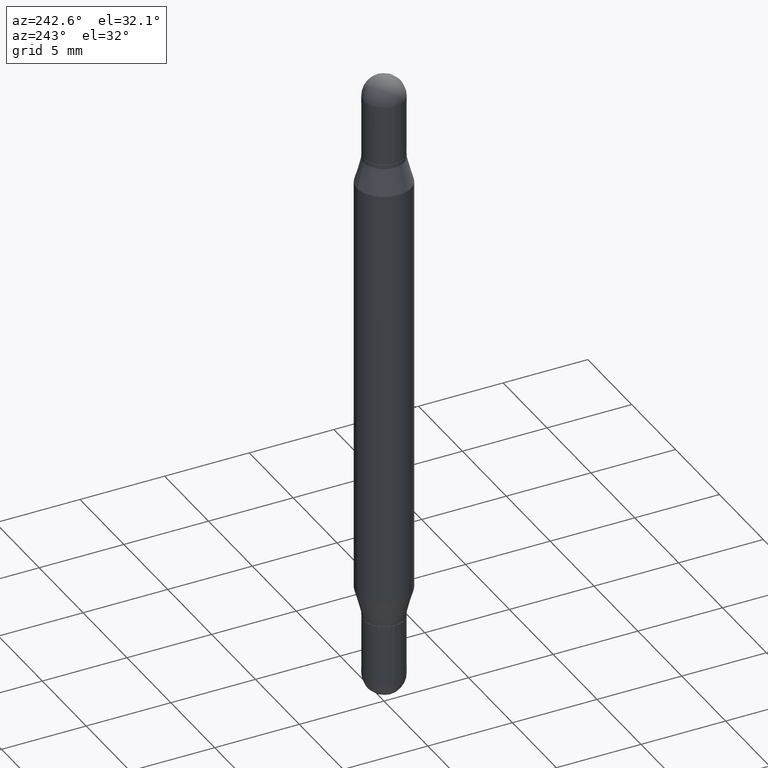
[diagram: clean part render]
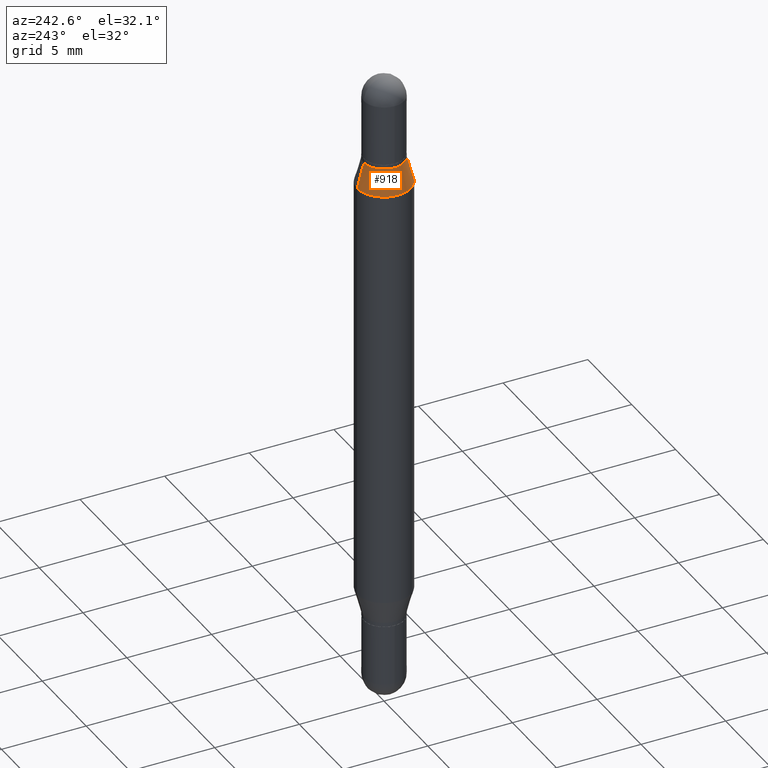
[diagram: same view with one face highlighted and labeled with its STEP entity id]
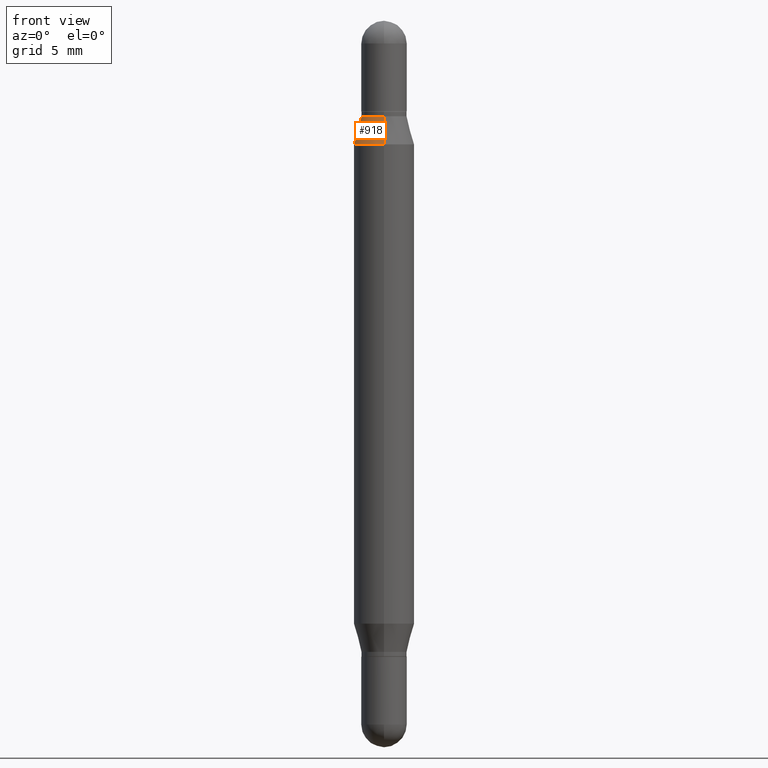
[diagram: same view with one face highlighted and labeled with its STEP entity id]
A machine part, auxiliary view. The second image highlights one B-rep face of the part: STEP entity #918.
A second angle (front view) of the same face is appended — the face is thin or edge-on in the first view.
In plain terms, the highlighted conical surface has half-angle 15 deg.
Its self-contained STEP definition (entity closure, byte-faithful):
#39 = AXIS2_PLACEMENT_3D ( 'NONE', #626, #733, #727 ) ;
#45 = CARTESIAN_POINT ( 'NONE',  ( 3.186785300828385595E-29, -6.938980973729069568E-16, -0.1970000000000001195 ) ) ;
#61 = VECTOR ( 'NONE', #361, 39.37007874015748143 ) ;
#65 = DIRECTION ( 'NONE',  ( -2.445729317596611550E-29, -3.479987534146448973E-15, -1.000000000000000000 ) ) ;
#72 = LINE ( 'NONE', #224, #813 ) ;
#74 = DIRECTION ( 'NONE',  ( -6.982962677686265922E-15, -1.000000000000000000, 3.278217592397115862E-15 ) ) ;
#78 = ORIENTED_EDGE ( 'NONE', *, *, #1006, .T. ) ;
#92 = ORIENTED_EDGE ( 'NONE', *, *, #191, .F. ) ;
#121 = EDGE_LOOP ( 'NONE', ( #92, #78, #214, #802 ) ) ;
#191 = EDGE_CURVE ( 'NONE', #251, #841, #481, .T. ) ;
#192 = CONICAL_SURFACE ( 'NONE', #910, 0.04689999999999964336, 0.2617993877991511842 ) ;
#214 = ORIENTED_EDGE ( 'NONE', *, *, #291, .T. ) ;
#224 = CARTESIAN_POINT ( 'NONE',  ( 3.217573560955141730E-16, 0.04689999999999894947, -0.1970000000000002860 ) ) ;
#240 = DIRECTION ( 'NONE',  ( 2.445729317596611550E-29, 3.479987534146448973E-15, 1.000000000000000000 ) ) ;
#243 = VERTEX_POINT ( 'NONE', #1064 ) ;
#251 = VERTEX_POINT ( 'NONE', #536 ) ;
#291 = EDGE_CURVE ( 'NONE', #498, #243, #420, .T. ) ;
#326 = EDGE_CURVE ( 'NONE', #841, #243, #445, .T. ) ;
#361 = DIRECTION ( 'NONE',  ( -1.807323732225336450E-15, -0.2588190451025258465, -0.9659258262890669799 ) ) ;
#420 = CIRCLE ( 'NONE', #1047, 0.06250000000000000000 ) ;
#438 = CARTESIAN_POINT ( 'NONE',  ( -3.275009495834514884E-16, -0.04690000000000033031, -0.1969999999999999529 ) ) ;
#445 = LINE ( 'NONE', #690, #61 ) ;
#481 = CIRCLE ( 'NONE', #39, 0.04689999999999964336 ) ;
#498 = VERTEX_POINT ( 'NONE', #922 ) ;
#536 = CARTESIAN_POINT ( 'NONE',  ( 3.217573560955143209E-16, 0.04689999999999894947, -0.1970000000000002860 ) ) ;
#626 = CARTESIAN_POINT ( 'NONE',  ( 3.186785300828385595E-29, -6.938980973729069568E-16, -0.1970000000000001195 ) ) ;
#690 = CARTESIAN_POINT ( 'NONE',  ( -3.275009495834514884E-16, -0.04690000000000033031, -0.1969999999999999529 ) ) ;
#727 = DIRECTION ( 'NONE',  ( -6.982962677686265133E-15, -1.000000000000000000, 3.640522379616583431E-15 ) ) ;
#733 = DIRECTION ( 'NONE',  ( 2.445729317596611550E-29, 3.479987534146448973E-15, 1.000000000000000000 ) ) ;
#802 = ORIENTED_EDGE ( 'NONE', *, *, #326, .F. ) ;
#813 = VECTOR ( 'NONE', #817, 39.37007874015748143 ) ;
#817 = DIRECTION ( 'NONE',  ( 1.775627540710971216E-15, 0.2588190451025190741, -0.9659258262890687563 ) ) ;
#841 = VERTEX_POINT ( 'NONE', #438 ) ;
#894 = FACE_OUTER_BOUND ( 'NONE', #121, .T. ) ;
#910 = AXIS2_PLACEMENT_3D ( 'NONE', #45, #65, #1075 ) ;
#918 = ADVANCED_FACE ( 'NONE', ( #894 ), #192, .T. ) ;
#922 = CARTESIAN_POINT ( 'NONE',  ( 4.287811248607510938E-16, 0.06249999999999910488, -0.2552199925980757067 ) ) ;
#1002 = CARTESIAN_POINT ( 'NONE',  ( 3.044394958061014750E-29, -8.965029458523087270E-16, -0.2552199925980755402 ) ) ;
#1006 = EDGE_CURVE ( 'NONE', #251, #498, #72, .T. ) ;
#1047 = AXIS2_PLACEMENT_3D ( 'NONE', #1002, #240, #74 ) ;
#1064 = CARTESIAN_POINT ( 'NONE',  ( -4.364351673553612490E-16, -0.06250000000000090206, -0.2552199925980753181 ) ) ;
#1075 = DIRECTION ( 'NONE',  ( -6.982962677686265133E-15, -1.000000000000000000, 3.640522379616583431E-15 ) ) ;